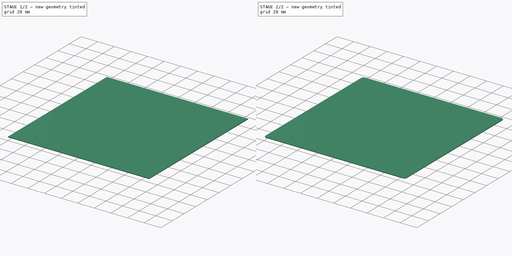
[diagram: build sequence overview — one tinted view per stage of 2, left to right]
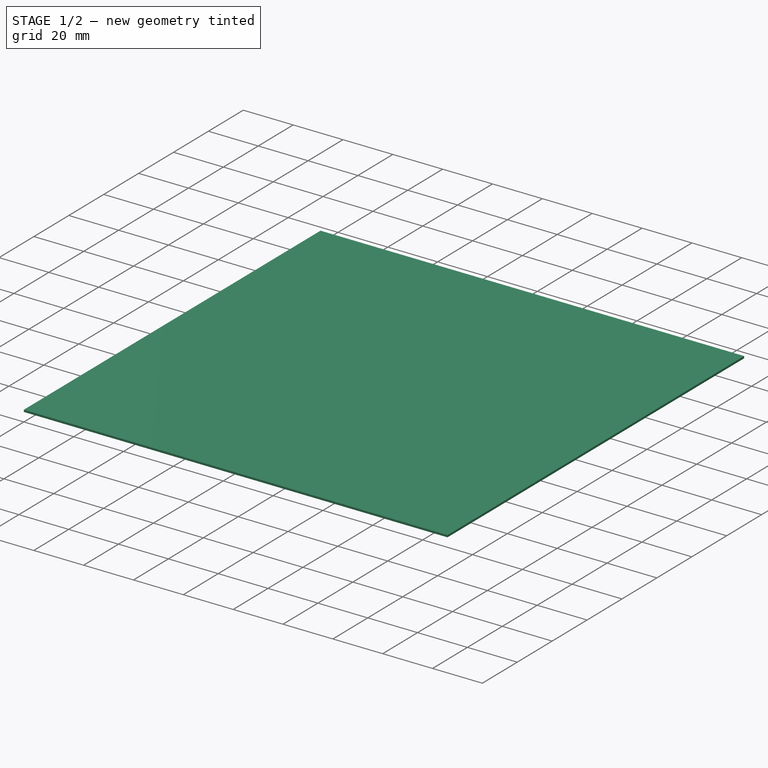
[diagram: stage 1 of 2 — iso view after this stage's code; geometry added in this stage tinted green]
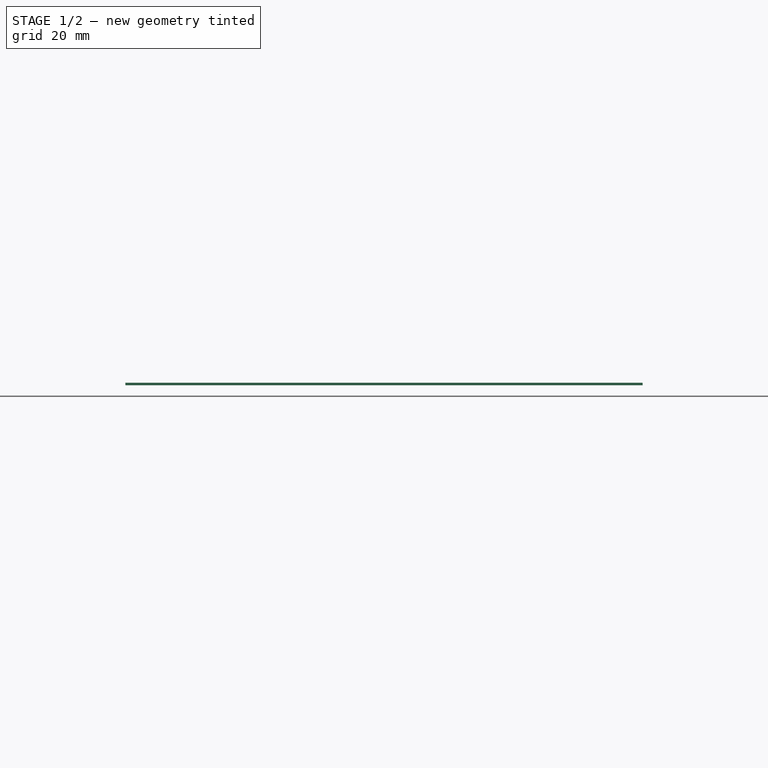
[diagram: stage 1 of 2 — front view after this stage's code; geometry added in this stage tinted green]
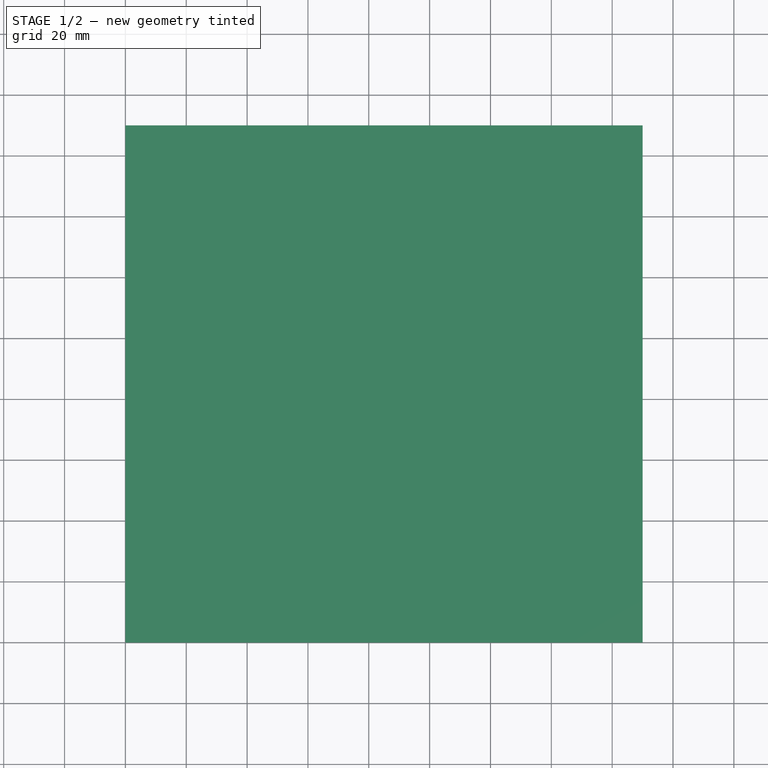
[diagram: stage 1 of 2 — top view after this stage's code; geometry added in this stage tinted green]
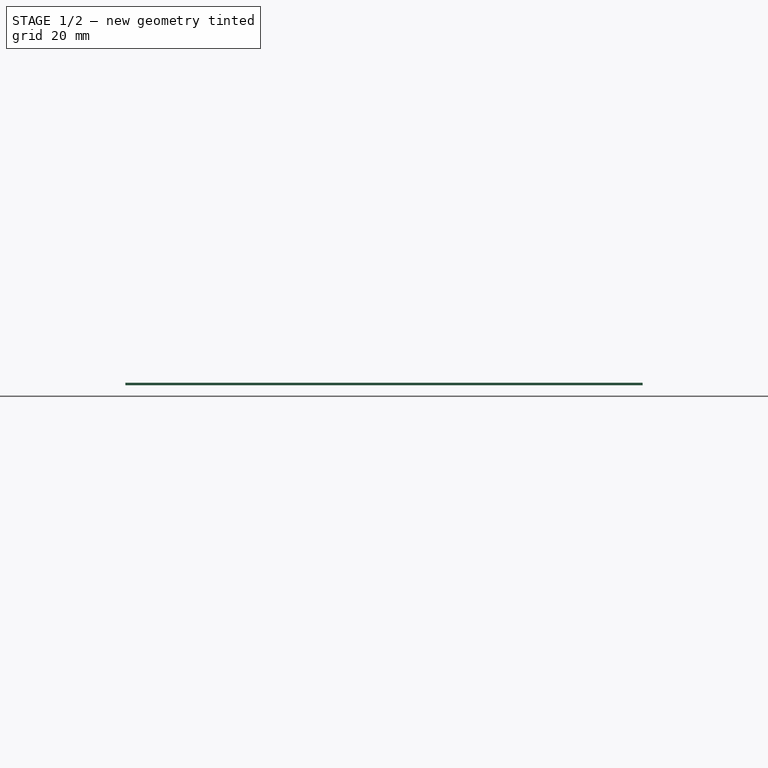
[diagram: stage 1 of 2 — right view after this stage's code; geometry added in this stage tinted green]
FCSTD DOCUMENT  (FreeCAD 0.17R11850 (Git))
Label: PP-FP0092_170mm_bed_spring_plate
License: All rights reserved
LicenseURL: http://en.wikipedia.org/wiki/All_rights_reserved
objects: Drawing::FeatureView×22, Drawing::FeatureViewPart×2, Sketcher::SketchObject×1, PartDesign::Pad×1, PartDesign::Fillet×1, PartDesign::Body×1, Drawing::FeaturePage×1
note: 5 computed .brp shape members not serialized (recipe doc carries the construction recipe); baked Part::Feature solids carry a one-line shape summary decoded from their .brp

FEATURE [Sketcher::SketchObject] Sketch
  MapMode = 5
  Support = -> [XY_Plane]
  sketch-geometry (4):
    g0: LineSegment StartX=0 StartY=0 StartZ=0 EndX=170 EndY=0 EndZ=0
    g1: LineSegment StartX=170 StartY=0 StartZ=0 EndX=170 EndY=170 EndZ=0
    g2: LineSegment StartX=170 StartY=170 StartZ=0 EndX=0 EndY=170 EndZ=0
    g3: LineSegment StartX=0 StartY=170 StartZ=0 EndX=0 EndY=0 EndZ=0
  constraints (11):
    c: Coincident(g0,g1)
    c: Coincident(g1,g2)
    c: Coincident(g2,g3)
    c: Coincident(g3,g0)
    c: Horizontal(g0)
    c: Horizontal(g2)
    c: Vertical(g1)
    c: Vertical(g3)
    c: Coincident(g0,g-1)
    c: Equal(g3,g2)
    c: DistanceY(g3,g3) = 170
FEATURE [PartDesign::Pad] Pad
  Length = 0.8128
  Length2 = 100
  Profile = -> Sketch
  Type = 0
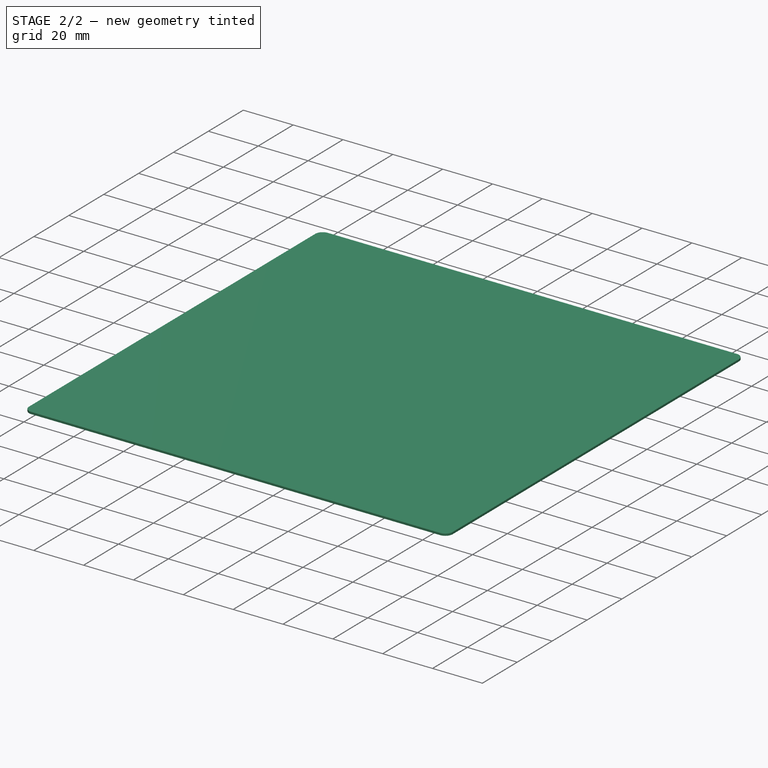
[diagram: stage 2 of 2 — iso view after this stage's code; geometry added in this stage tinted green]
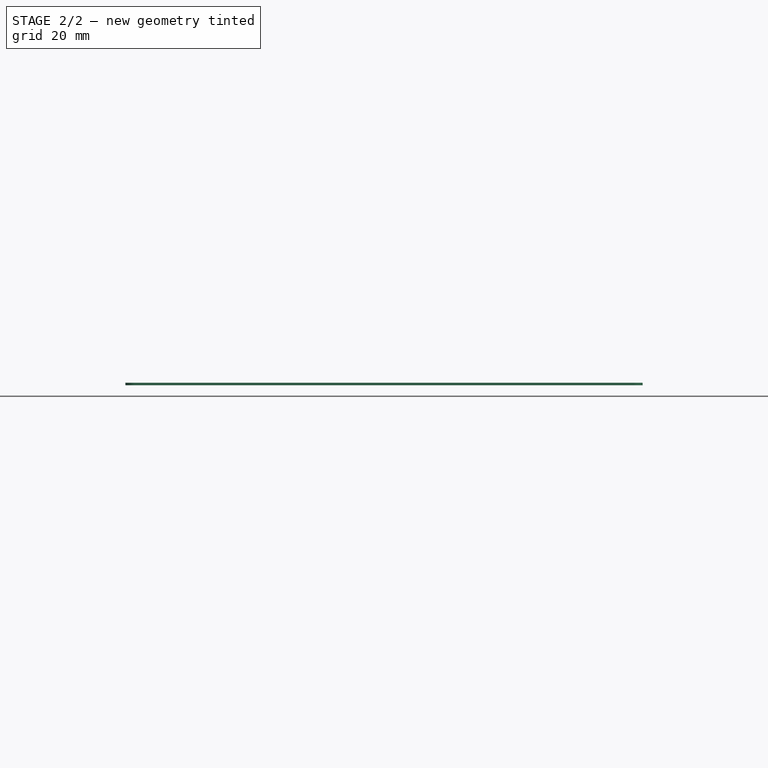
[diagram: stage 2 of 2 — front view after this stage's code; geometry added in this stage tinted green]
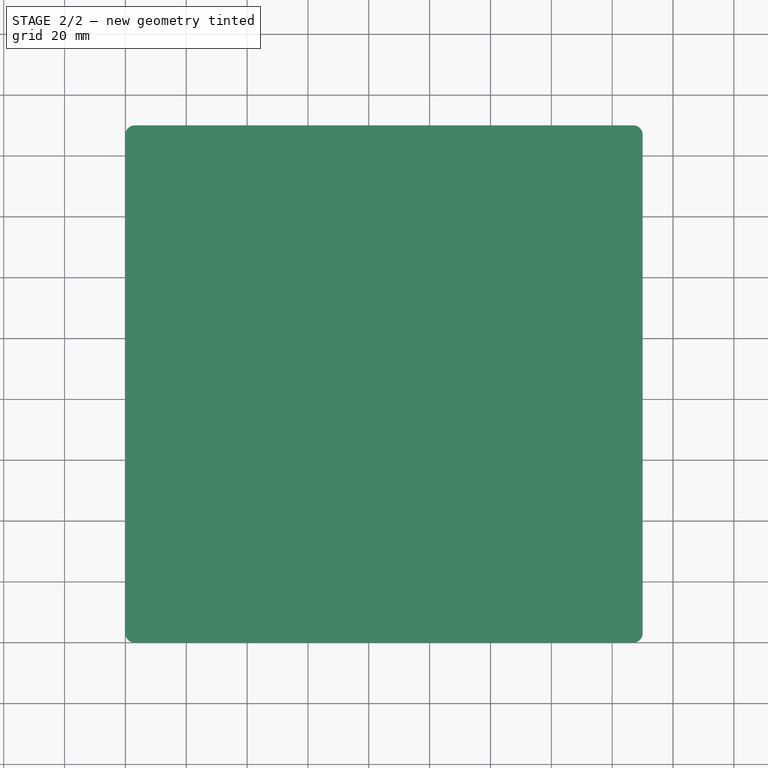
[diagram: stage 2 of 2 — top view after this stage's code; geometry added in this stage tinted green]
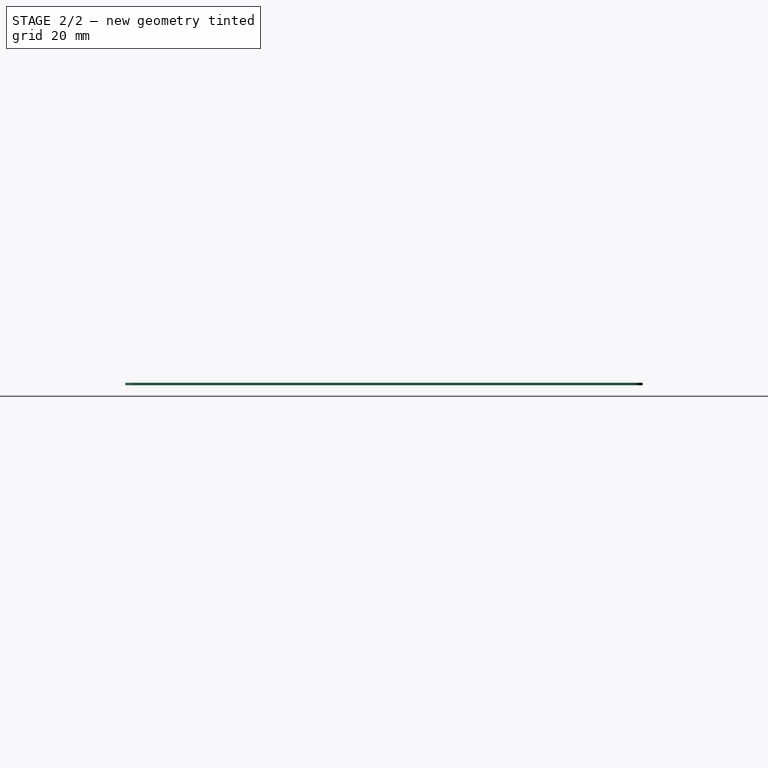
[diagram: stage 2 of 2 — right view after this stage's code; geometry added in this stage tinted green]
FEATURE [PartDesign::Fillet] Fillet
  Base = -> Pad [Edge1,Edge2,Edge5,Edge8]
  BaseFeature = -> Pad
  Radius = 3
FEATURE [PartDesign::Body] Body
  Origin = -> BodyOrigin
  Tip = -> Fillet
FEATURE [Drawing::FeatureViewPart] Ortho  label="Ortho_0_0"
  Direction = (0,0,1)
  HiddenWidth = 0.15
  LineWidth = 0.35
  Rotation = 0
  Scale = 0.5
  ShowHiddenLines = false
  ShowSmoothLines = false
  Source = -> Fillet
  Tolerance = 0.05
  ViewResult = <g id="Ortho_0_0"\n   transform="rotate(0,23.75,137.75) translate(23.75,137.75) scale(0.5,0.5)"\n  >\n<g   stroke="rgb(0, 0, 0)"\n   stroke-width="0.7"\n   stroke-linecap="butt"\n   stroke-linejoin="miter"\n   fill="none"\n   transform="scale(1,-1)"\n  >\n<path id= "1" d=" M 3 0 L 167 0 " />\n<path d="M3 -4.44089e-16 A3 3 0 0 0 -4.44089e-16 3" /><path d="M167 -4.44089e-16 A3 3 0 0 1 170 3" /><path id= "4" d=" M 0 167 L 0 3 " />\n<path id= "5" d=" M 170 3 L 170 167 " />\n<path d="M3 170 A3 3 0 0 1 -4.44089e-16 167" /><path d="M170 167 A3 3 0 0 1 167 170" /><path id= "8" d=" M 167 170 L 3 170 " />\n</g>\n</g>
  Visible = true
  X = 23.75
  Y = 137.75
FEATURE [Drawing::FeatureViewPart] Ortho001  label="Ortho_1_0"
  Direction = (1,0,0)
  HiddenWidth = 0.15
  LineWidth = 0.35
  Rotation = 180
  Scale = 0.5
  ShowHiddenLines = false
  ShowSmoothLines = false
  Source = -> Fillet
  Tolerance = 0.05
  ViewResult = <g id="Ortho_1_0"\n   transform="rotate(180,150,137.75) translate(150,137.75) scale(0.5,0.5)"\n  >\n<g   stroke="rgb(0, 0, 0)"\n   stroke-width="0.7"\n   stroke-linecap="butt"\n   stroke-linejoin="miter"\n   fill="none"\n   transform="scale(1,-1)"\n  >\n<path id= "1" d=" M 0 4.44089e-16 L 0.8128 4.44089e-16 " />\n<path d="M0,4.44089e-16 L0,-0.0188634  L0,-0.0752163  L0,-0.16835  L0,-0.297093  L0,-0.459827  L0,-0.654506  L0,-0.87868  L0,-1.12953  L0,-1.4039  L0,-1.69835  L0,-2.00916  L0,-2.33244  L0,-2.66411  L0,-3 " /><path id= "3" d=" M 0 -3 L 0 -167 " />\n<path d="M0,-167 L0,-167.336  L0,-167.668  L0,-167.991  L0,-168.302  L0,-168.596  L0,-168.87  L0,-169.121  L0,-169.345  L0,-169.54  L0,-169.703  L0,-169.832  L0,-169.925  L0,-169.981  L0,-170 " /><path d="M0.8128,4.44089e-16 L0.8128,-0.0188634  L0.8128,-0.0752163  L0.8128,-0.16835  L0.8128,-0.297093  L0.8128,-0.459827  L0.8128,-0.654506  L0.8128,-0.87868  L0.8128,-1.12953  L0.8128,-1.4039  L0.8128,-1.69835  L0.8128,-2.00916  L0.8128,-2.33244  L0.8128,-2.66411  L0.8128,-3 " /><path id= "6" d=" M 0.8128 -3 L 0.8128 -167 " />\n<path d="M0.8128,-167 L0.8128,-167.336  L0.8128,-167.668  L0.8128,-167.991  L0.8128,-168.302  L0.8128,-168.596  L0.8128,-168.87  L0.8128,-169.121  L0.8128,-169.345  L0.8128,-169.54  L0.8128,-169.703  L0.8128,-169.832  L0.8128,-169.925  L0.8128,-169.981  L0.8128,-170 " /><path id= "8" d=" M 0 -170 L 0.8128 -170 " />\n</g>\n</g>
  Visible = true
  X = 150
  Y = 137.75
FEATURE [Drawing::FeatureView] dimText001
  Rotation = 0
  ViewResult = <g> <text x="15.000000" y="170.000000" font-family="inherit" font-size="4" fill="rgb(0,0,0)" text-anchor="inherit" transform="rotate(0.000000 15.000000,170.000000)" >Rev</text> </g>
  Visible = true
  X = 0
  Y = 0
FEATURE [Drawing::FeatureView] dimText002
  Rotation = 0
  ViewResult = <g> <text x="25.000000" y="170.000000" font-family="inherit" font-size="4" fill="rgb(0,0,0)" text-anchor="inherit" transform="rotate(0.000000 25.000000,170.000000)" >Date</text> </g>
  Visible = true
  X = 0
  Y = 0
FEATURE [Drawing::FeatureView] dimText003
  Rotation = 0
  ViewResult = <g> <text x="45.000000" y="170.000000" font-family="inherit" font-size="4" fill="rgb(0,0,0)" text-anchor="inherit" transform="rotate(0.000000 45.000000,170.000000)" >Description</text> </g>
  Visible = true
  X = 0
  Y = 0
FEATURE [Drawing::FeatureView] dimText004
  Rotation = 0
  ViewResult = <g> <text x="15.000000" y="175.000000" font-family="inherit" font-size="3" fill="rgb(0,0,0)" text-anchor="inherit" transform="rotate(0.000000 15.000000,175.000000)" >IR</text> </g>
  Visible = true
  X = 0
  Y = 0
FEATURE [Drawing::FeatureView] dimText005
  Rotation = 0
  ViewResult = <g> <text x="25.000000" y="175.000000" font-family="inherit" font-size="3" fill="rgb(0,0,0)" text-anchor="inherit" transform="rotate(0.000000 25.000000,175.000000)" >02.13.17</text> </g>
  Visible = true
  X = 0
  Y = 0
FEATURE [Drawing::FeatureView] dimText006
  Rotation = 0
  ViewResult = <g> <text x="45.000000" y="175.000000" font-family="inherit" font-size="3" fill="rgb(0,0,0)" text-anchor="inherit" transform="rotate(0.000000 45.000000,175.000000)" >Initial release</text> </g>
  Visible = true
  X = 0
  Y = 0
FEATURE [Drawing::FeatureView] dimText007
  Rotation = 0
  ViewResult = <g> <text x="180.000000" y="60.000000" font-family="inherit" font-size="4" fill="rgb(0,0,0)" text-anchor="inherit" transform="rotate(0.000000 180.000000,60.000000)" >Notes:</text> </g>
  Visible = true
  X = 0
  Y = 0
FEATURE [Drawing::FeatureView] dimText008
  Rotation = 0
  ViewResult = <g> <text x="180.000000" y="65.000000" font-family="inherit" font-size="3" fill="rgb(0,0,0)" text-anchor="inherit" transform="rotate(0.000000 180.000000,65.000000)" >1. All parts must be RoHS compliant.</text> </g>
  Visible = true
  X = 0
  Y = 0
FEATURE [Drawing::FeatureView] dimText009
  Rotation = 0
  ViewResult = <g> <text x="180.000000" y="70.000000" font-family="inherit" font-size="3" fill="rgb(0,0,0)" text-anchor="inherit"  >2. Material: 430 stainless steel</text> </g>
  Visible = true
  X = 0
  Y = 0
FEATURE [Drawing::FeatureView] dimText010
  Rotation = 0
  ViewResult = <g> <text x="180.000000" y="80.000000" font-family="inherit" font-size="3" fill="rgb(0,0,0)" text-anchor="inherit" transform="rotate(0.000000 180.000000,80.000000)" >3. Break all sharp edges.</text> </g>
  Visible = true
  X = 0
  Y = 0
FEATURE [Drawing::FeatureView] dimText011
  Rotation = 0
  ViewResult = <g> <text x="180.000000" y="85.000000" font-family="inherit" font-size="3" fill="rgb(0,0,0)" text-anchor="inherit"  >4. Finish: Bright Annealed (2BA) </text> </g>
  Visible = true
  X = 0
  Y = 0
FEATURE [Drawing::FeatureView] dimText012
  Rotation = 0
  ViewResult = <g> <text x="185.000000" y="75.000000" font-family="inherit" font-size="3" fill="rgb(0,0,0)" text-anchor="inherit"  >Nominal thickness 0.030" +/- 0.003"</text> </g>
  Visible = true
  X = 0
  Y = 0
FEATURE [Drawing::FeatureView] dim001
  Rotation = 0
  ViewResult = <g> <line x1="23.750000" y1="52.250000" x2="23.750000" y2="40.865446" style="stroke:rgb(0,0,255);stroke-width:0.20" />\n<line x1="108.750000" y1="52.250000" x2="108.750000" y2="40.865446" style="stroke:rgb(0,0,255);stroke-width:0.20" />\n<line x1="23.750000" y1="41.865446" x2="108.750000" y2="41.865446" style="stroke:rgb(0,0,255);stroke-width:0.20" />\n<polygon points="23.750000,41.865446 26.750000,42.615446 26.750000,41.865446 26.750000,41.115446" style="fill:rgb(0,0,255);stroke:rgb(0,0,255);stroke-width:0" />\n<polygon points="108.750000,41.865446 105.750000,41.115446 105.750000,41.865446 105.750000,42.615446" style="fill:rgb(0,0,255);stroke:rgb(0,0,255);stroke-width:0" />\n<text x="66.250000" y="40.865446" font-family="Verdana" font-size="3" fill="rgb(0,0,0)" text-anchor="middle"  >170.0</text> </g> 
  Visible = true
  X = 0
  Y = 0
FEATURE [Drawing::FeatureView] dim002
  Rotation = 0
  ViewResult = <g> <line x1="109.250000" y1="52.750000" x2="120.175258" y2="52.750000" style="stroke:rgb(0,0,255);stroke-width:0.20" />\n<line x1="109.250000" y1="137.750000" x2="120.175258" y2="137.750000" style="stroke:rgb(0,0,255);stroke-width:0.20" />\n<line x1="119.175258" y1="52.750000" x2="119.175258" y2="137.750000" style="stroke:rgb(0,0,255);stroke-width:0.20" />\n<polygon points="119.175258,52.750000 118.425258,55.750000 119.175258,55.750000 119.925258,55.750000" style="fill:rgb(0,0,255);stroke:rgb(0,0,255);stroke-width:0" />\n<polygon points="119.175258,137.750000 119.925258,134.750000 119.175258,134.750000 118.425258,134.750000" style="fill:rgb(0,0,255);stroke:rgb(0,0,255);stroke-width:0" />\n<text x="118.175258" y="95.250000" font-family="Verdana" font-size="3" fill="rgb(0,0,0)" text-anchor="middle" transform="rotate(-90.000000 118.175258,95.250000)" >170.0</text> </g> 
  Visible = true
  X = 0
  Y = 0
FEATURE [Drawing::FeatureView] dim003
  Rotation = 0
  ViewResult = <g> <line x1="149.593600" y1="52.250000" x2="149.593600" y2="38.983118" style="stroke:rgb(0,0,255);stroke-width:0.20" />\n<line x1="150.000000" y1="52.250000" x2="150.000000" y2="38.983118" style="stroke:rgb(0,0,255);stroke-width:0.20" />\n<line x1="149.593600" y1="39.983118" x2="150.000000" y2="39.983118" style="stroke:rgb(0,0,255);stroke-width:0.20" />\n<polygon points="149.593600,39.983118 146.593600,39.233118 146.593600,39.983118 146.593600,40.733118" style="fill:rgb(0,0,255);stroke:rgb(0,0,255);stroke-width:0" />\n<polygon points="150.000000,39.983118 153.000000,40.733118 153.000000,39.983118 153.000000,39.233118" style="fill:rgb(0,0,255);stroke:rgb(0,0,255);stroke-width:0" />\n<text x="149.796800" y="38.983118" font-family="Verdana" font-size="3" fill="rgb(0,0,0)" text-anchor="middle"  >0.81 [0.032"]</text> </g> 
  Visible = true
  X = 0
  Y = 0
FEATURE [Drawing::FeatureView] dim004
  Rotation = 0
  ViewResult = <g>  <circle cx ="107.250000" cy ="54.250000" r="0.000000" stroke="none" fill="rgb(0,0,255)" /> \n<line x1="120.553942" y1="40.445164" x2="107.250000" y2="54.250000" style="stroke:rgb(0,0,255);stroke-width:0.20" />\n<polygon points="108.290884,53.169926 110.912690,51.530221 110.372653,51.009778 109.832617,50.489336" style="fill:rgb(0,0,255);stroke:rgb(0,0,255);stroke-width:0" />\n<line x1="120.553942" y1="40.445164" x2="132.863340" y2="40.445164" style="stroke:rgb(0,0,255);stroke-width:0.20" />\n<text x="126.708641" y="39.445164" font-family="Verdana" font-size="3" fill="rgb(0,0,0)" text-anchor="middle"  >4X, R3.0</text> </g>
  Visible = true
  X = 0
  Y = 0
FEATURE [Drawing::FeatureView] dimText013
  Rotation = 0
  ViewResult = <g> <text x="180.218332" y="99.120083" font-family="inherit" font-size="3" fill="rgb(0,0,0)" text-anchor="inherit"  >5. Must be free of bends and creases</text> </g>
  Visible = true
  X = 0
  Y = 0
FEATURE [Drawing::FeatureView] dimText014
  Rotation = 0
  ViewResult = <g> <text x="187.524481" y="89.378551" font-family="inherit" font-size="3" fill="rgb(0,0,0)" text-anchor="inherit"  >Metal surface must be free of noticeable pocking, </text> </g>
  Visible = true
  X = 0
  Y = 0
FEATURE [Drawing::FeatureView] dimText015
  Rotation = 0
  ViewResult = <g> <text x="193.369400" y="93.275164" font-family="inherit" font-size="3" fill="rgb(0,0,0)" text-anchor="inherit"  >dimples, denting, and scratches larger than 12mm</text> </g>
  Visible = true
  X = 0
  Y = 0
FEATURE [Drawing::FeatureView] dimText016
  Rotation = 0
  ViewResult = <g> <text x="15.447286" y="180.302744" font-family="inherit" font-size="3" fill="rgb(0,0,0)" text-anchor="inherit"  >A </text> </g>
  Visible = true
  X = 0
  Y = 0
FEATURE [Drawing::FeatureView] dimText017
  Rotation = 0
  ViewResult = <g> <text x="24.563716" y="180.302744" font-family="inherit" font-size="3" fill="rgb(0,0,0)" text-anchor="inherit"  >10/20/17</text> </g>
  Visible = true
  X = 0
  Y = 0
FEATURE [Drawing::FeatureView] dimText018
  Rotation = 0
  ViewResult = <g> <text x="44.569218" y="180.302744" font-family="inherit" font-size="3" fill="rgb(0,0,0)" text-anchor="inherit"  >Added surface finish notes</text> </g>
  Visible = true
  X = 0
  Y = 0
FEATURE [Drawing::FeaturePage] Page
  EditableTexts = TUTLEY | 10/20/17 | 1:2 | 170mm bed spring plate | A | PP-FP0092 | 1 of 1 | See Notes
  Group = -> [Ortho,Ortho001,dimText001,dimText002,dimText003,dimText004,dimText005,dimText006,dimText007,dimText008,dimText009,dimText010,dimText011,dimText012,dim001,dim002,dim003,dim004,dimText013,dimText014,dimText015,dimText016,dimText017,dimText018]
  Template = <userpath>/shared-j/Documents/R&D/titleblocks/A4_Landscape_Aleph.svg
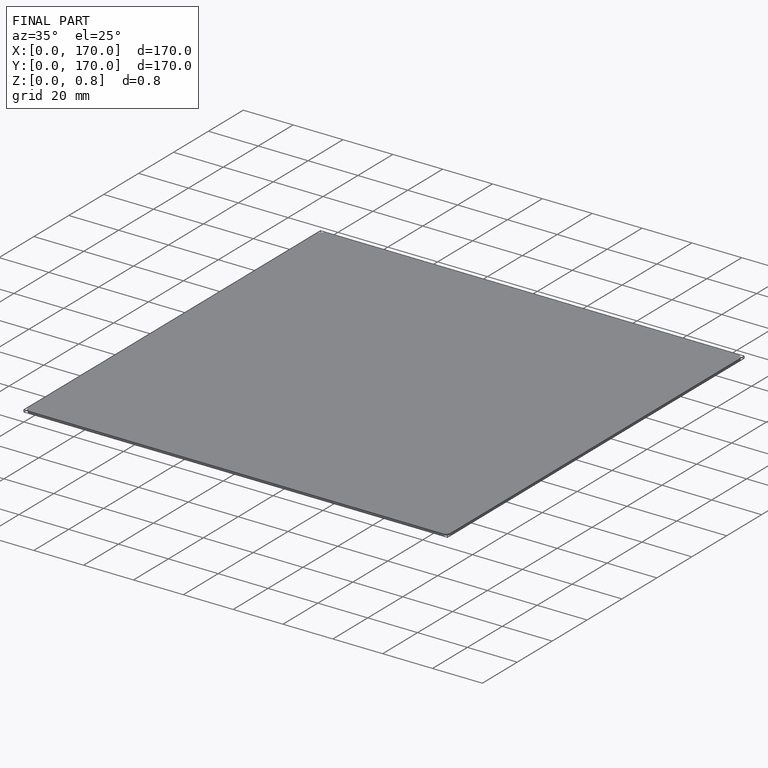
[diagram: finished part — iso view with bounding-box wireframe]
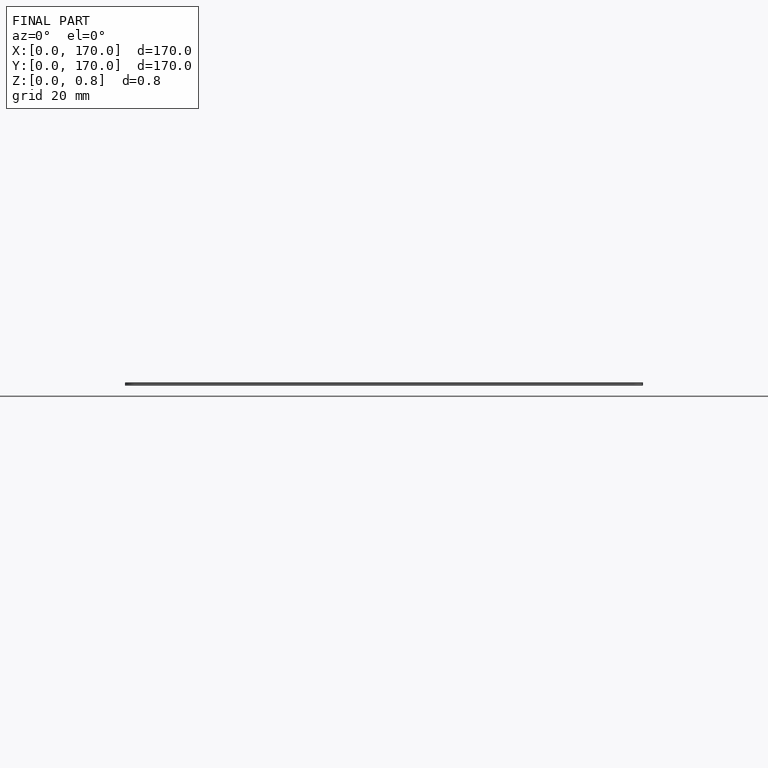
[diagram: finished part — front view with bounding-box wireframe]
